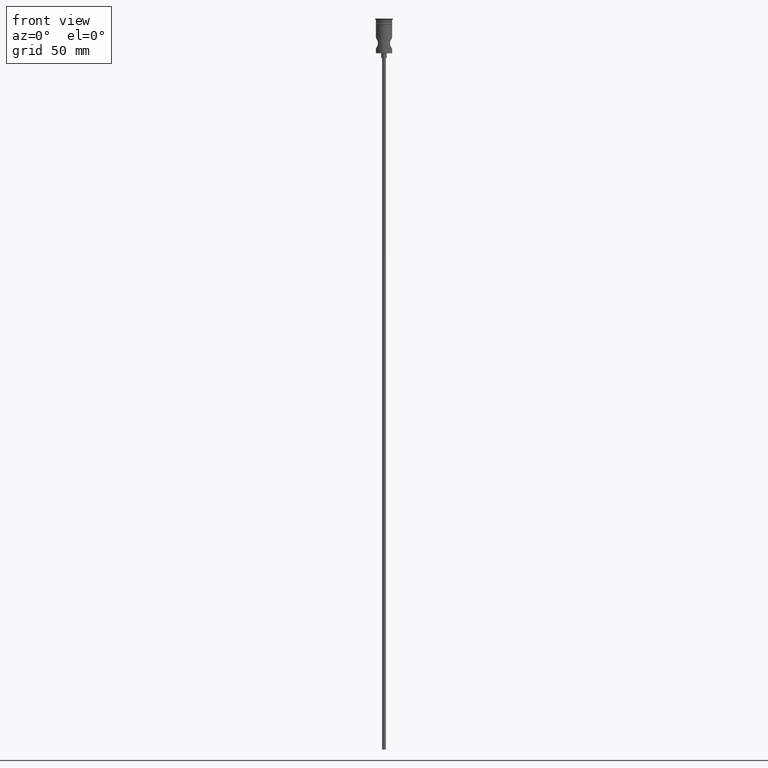
[diagram: clean part render]
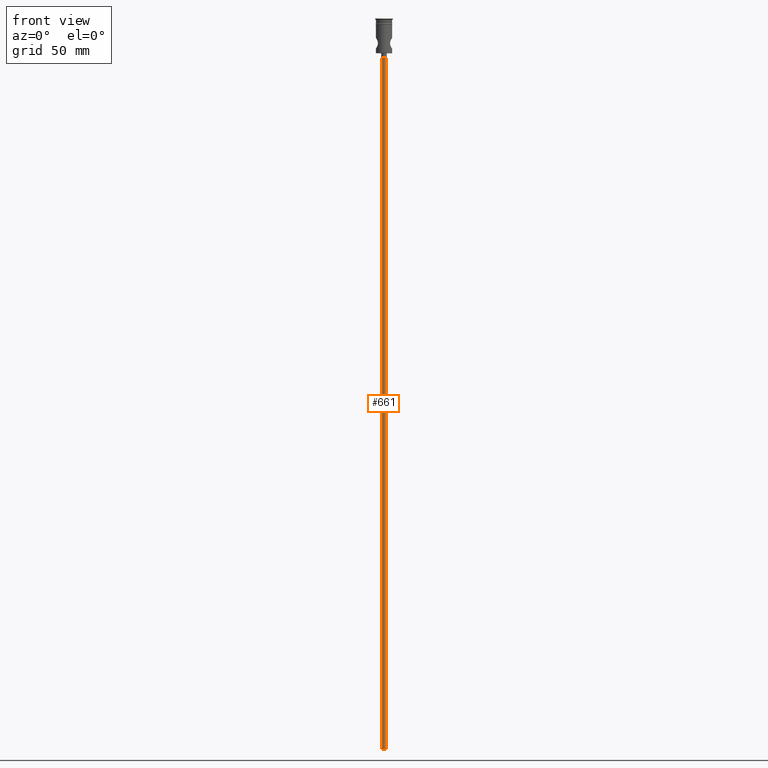
[diagram: same view with one face highlighted and labeled with its STEP entity id]
A machine part, front view. The second image highlights one B-rep face of the part: STEP entity #661.
In plain terms, the highlighted cylindrical surface (edge-blend (fillet) strip) has radius 1.25 mm, axis along (-0, -0, 1).
Its self-contained STEP definition (entity closure, byte-faithful):
#35 = CARTESIAN_POINT ( 'NONE',  ( 0.000000000000000000, 0.000000000000000000, -25.50000000000000000 ) ) ;
#75 = ORIENTED_EDGE ( 'NONE', *, *, #533, .F. ) ;
#85 = DIRECTION ( 'NONE',  ( -1.000000000000000000, 0.000000000000000000, 0.000000000000000000 ) ) ;
#92 = ORIENTED_EDGE ( 'NONE', *, *, #1364, .F. ) ;
#175 = ORIENTED_EDGE ( 'NONE', *, *, #741, .T. ) ;
#189 = VERTEX_POINT ( 'NONE', #291 ) ;
#200 = CARTESIAN_POINT ( 'NONE',  ( 1.250000000000000000, 0.000000000000000000, -472.5000000000000568 ) ) ;
#247 = AXIS2_PLACEMENT_3D ( 'NONE', #941, #377, #952 ) ;
#291 = CARTESIAN_POINT ( 'NONE',  ( -1.250000000000000000, 1.530808498934191571E-16, -472.5000000000000568 ) ) ;
#315 = VERTEX_POINT ( 'NONE', #200 ) ;
#377 = DIRECTION ( 'NONE',  ( -0.000000000000000000, -0.000000000000000000, 1.000000000000000000 ) ) ;
#383 = FACE_OUTER_BOUND ( 'NONE', #1098, .T. ) ;
#480 = CARTESIAN_POINT ( 'NONE',  ( 1.250000000000000000, 0.000000000000000000, -472.5000000000000568 ) ) ;
#484 = DIRECTION ( 'NONE',  ( 0.000000000000000000, 0.000000000000000000, -1.000000000000000000 ) ) ;
#495 = CYLINDRICAL_SURFACE ( 'NONE', #247, 1.250000000000000000 ) ;
#533 = EDGE_CURVE ( 'NONE', #315, #189, #796, .T. ) ;
#611 = CARTESIAN_POINT ( 'NONE',  ( -1.250000000000000000, 1.530808498934191571E-16, -25.50000000000000000 ) ) ;
#657 = CARTESIAN_POINT ( 'NONE',  ( 1.250000000000000000, 0.000000000000000000, -25.50000000000000000 ) ) ;
#661 = ADVANCED_FACE ( 'NONE', ( #383 ), #495, .T. ) ;
#663 = CARTESIAN_POINT ( 'NONE',  ( 0.000000000000000000, 0.000000000000000000, -472.5000000000000568 ) ) ;
#687 = VERTEX_POINT ( 'NONE', #611 ) ;
#741 = EDGE_CURVE ( 'NONE', #1307, #687, #1063, .T. ) ;
#745 = LINE ( 'NONE', #1181, #1322 ) ;
#769 = DIRECTION ( 'NONE',  ( 0.000000000000000000, 0.000000000000000000, -1.000000000000000000 ) ) ;
#796 = CIRCLE ( 'NONE', #889, 1.250000000000000000 ) ;
#819 = DIRECTION ( 'NONE',  ( -1.000000000000000000, 0.000000000000000000, 0.000000000000000000 ) ) ;
#889 = AXIS2_PLACEMENT_3D ( 'NONE', #663, #769, #85 ) ;
#941 = CARTESIAN_POINT ( 'NONE',  ( 0.000000000000000000, 0.000000000000000000, -472.5000000000000568 ) ) ;
#952 = DIRECTION ( 'NONE',  ( 1.000000000000000000, 0.000000000000000000, 0.000000000000000000 ) ) ;
#978 = VECTOR ( 'NONE', #1221, 1000.000000000000000 ) ;
#1029 = LINE ( 'NONE', #480, #978 ) ;
#1063 = CIRCLE ( 'NONE', #1154, 1.250000000000000000 ) ;
#1064 = EDGE_CURVE ( 'NONE', #315, #1307, #1029, .T. ) ;
#1098 = EDGE_LOOP ( 'NONE', ( #92, #75, #1385, #175 ) ) ;
#1154 = AXIS2_PLACEMENT_3D ( 'NONE', #35, #484, #819 ) ;
#1181 = CARTESIAN_POINT ( 'NONE',  ( -1.250000000000000000, 1.530808498934191571E-16, -472.5000000000000568 ) ) ;
#1221 = DIRECTION ( 'NONE',  ( -0.000000000000000000, -0.000000000000000000, 1.000000000000000000 ) ) ;
#1307 = VERTEX_POINT ( 'NONE', #657 ) ;
#1322 = VECTOR ( 'NONE', #1405, 1000.000000000000000 ) ;
#1364 = EDGE_CURVE ( 'NONE', #189, #687, #745, .T. ) ;
#1385 = ORIENTED_EDGE ( 'NONE', *, *, #1064, .T. ) ;
#1405 = DIRECTION ( 'NONE',  ( -0.000000000000000000, -0.000000000000000000, 1.000000000000000000 ) ) ;